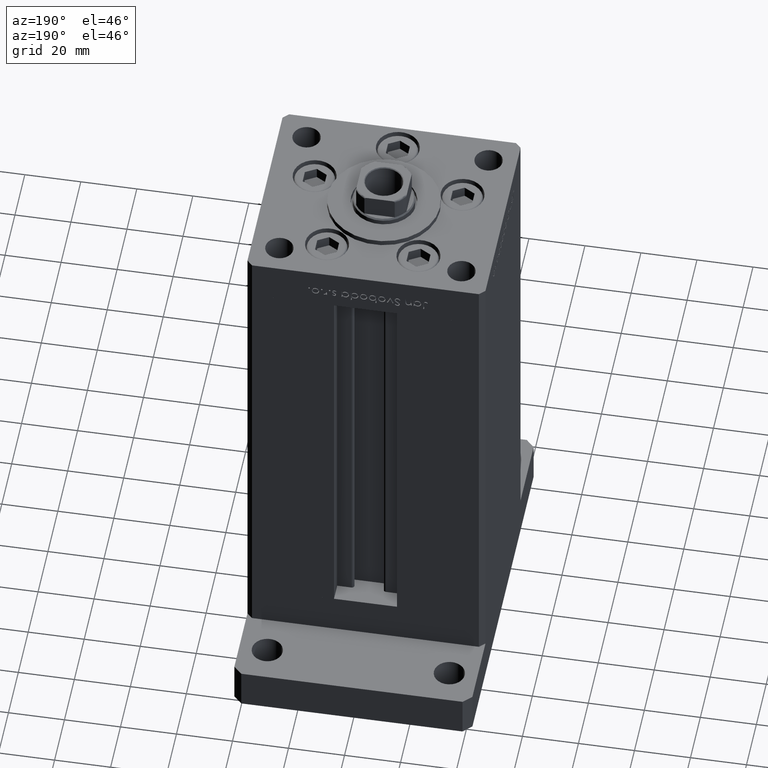
[diagram: clean part render]
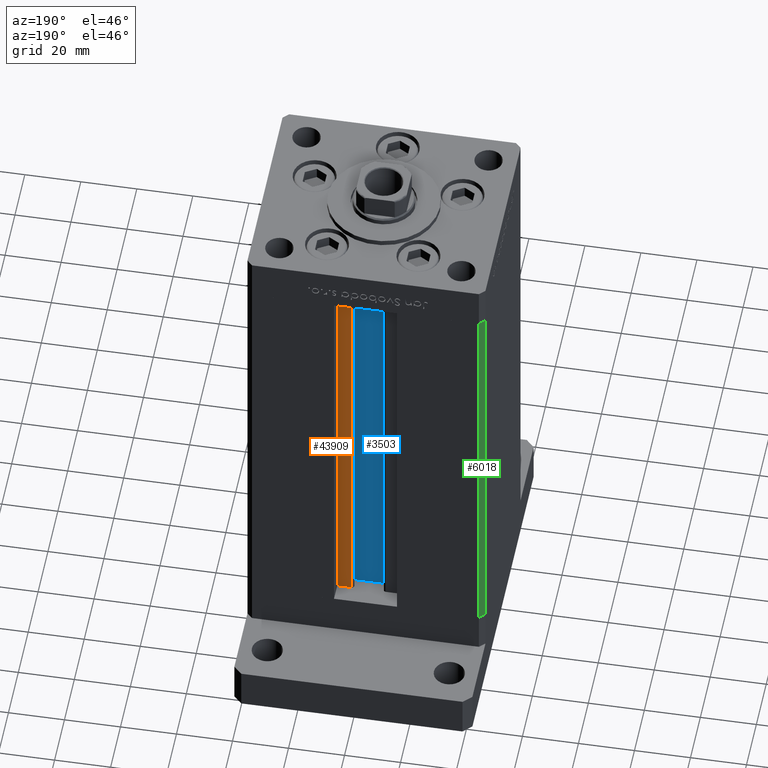
[diagram: same view with three faces highlighted in distinct colors, each labeled with its STEP entity id]
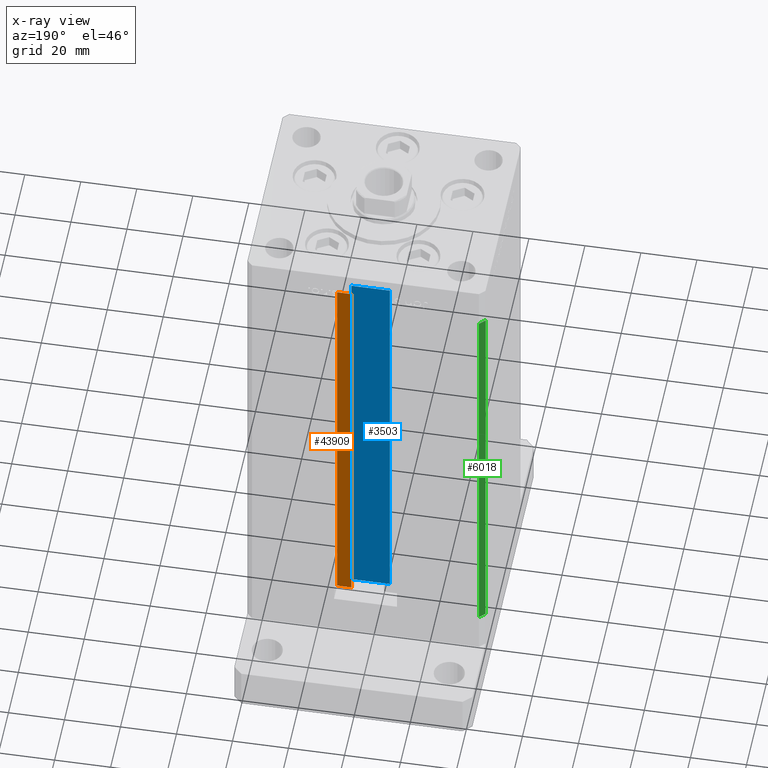
[diagram: x-ray of the same camera — body ghosted, the three highlighted faces saturated]
A machine part, auxiliary view with three faces highlighted in distinct colors.
The next image is the same camera in x-ray (body ghosted, the three faces saturated) — at least one of them is partly hidden behind the body in this view.
Their STEP definitions:

[orange] entity #43909 — the highlighted planar face has unit normal (0, -1, 0).
#491 = DIRECTION ( 'NONE',  ( -0.000000000000000000, -0.000000000000000000, 1.000000000000000000 ) ) ;
#852 = DIRECTION ( 'NONE',  ( -1.000000000000000000, 0.000000000000000000, 0.000000000000000000 ) ) ;
#1392 = CARTESIAN_POINT ( 'NONE',  ( 0.000000000000000000, 30.99999999999999289, 148.5000000000000000 ) ) ;
#2277 = EDGE_CURVE ( 'NONE', #49760, #42768, #46109, .T. ) ;
#3004 = DIRECTION ( 'NONE',  ( 0.000000000000000000, -1.000000000000000000, 0.000000000000000000 ) ) ;
#3571 = CARTESIAN_POINT ( 'NONE',  ( 6.183333333333999704, 30.99999999999999289, 148.5000000000000000 ) ) ;
#4378 = EDGE_CURVE ( 'NONE', #16620, #35608, #23104, .T. ) ;
#6295 = ORIENTED_EDGE ( 'NONE', *, *, #8375, .F. ) ;
#6853 = DIRECTION ( 'NONE',  ( -0.000000000000000000, -0.000000000000000000, 1.000000000000000000 ) ) ;
#7394 = CARTESIAN_POINT ( 'NONE',  ( 11.25000000000000000, 30.99999999999999289, 0.000000000000000000 ) ) ;
#7502 = EDGE_LOOP ( 'NONE', ( #44437, #38277, #10479, #6295 ) ) ;
#8375 = EDGE_CURVE ( 'NONE', #35608, #42768, #13883, .T. ) ;
#10479 = ORIENTED_EDGE ( 'NONE', *, *, #2277, .T. ) ;
#13883 = LINE ( 'NONE', #1392, #32065 ) ;
#15021 = AXIS2_PLACEMENT_3D ( 'NONE', #23599, #3004, #27677 ) ;
#16620 = VERTEX_POINT ( 'NONE', #29246 ) ;
#21462 = DIRECTION ( 'NONE',  ( 1.000000000000000000, 0.000000000000000000, 0.000000000000000000 ) ) ;
#21623 = CARTESIAN_POINT ( 'NONE',  ( 6.183333333333999704, 30.99999999999999289, 0.000000000000000000 ) ) ;
#22090 = CARTESIAN_POINT ( 'NONE',  ( 11.25000000000000000, 30.99999999999999289, 148.5000000000000000 ) ) ;
#23104 = LINE ( 'NONE', #7394, #31947 ) ;
#23599 = CARTESIAN_POINT ( 'NONE',  ( 6.183333333333999704, 30.99999999999999289, 0.000000000000000000 ) ) ;
#27677 = DIRECTION ( 'NONE',  ( 0.000000000000000000, -0.000000000000000000, -1.000000000000000000 ) ) ;
#29246 = CARTESIAN_POINT ( 'NONE',  ( 11.25000000000000000, 30.99999999999999289, 0.000000000000000000 ) ) ;
#29614 = LINE ( 'NONE', #30702, #39868 ) ;
#30702 = CARTESIAN_POINT ( 'NONE',  ( 6.183333333333999704, 30.99999999999999289, 0.000000000000000000 ) ) ;
#31947 = VECTOR ( 'NONE', #6853, 1000.000000000000000 ) ;
#32065 = VECTOR ( 'NONE', #852, 1000.000000000000000 ) ;
#35108 = EDGE_CURVE ( 'NONE', #49760, #16620, #29614, .T. ) ;
#35608 = VERTEX_POINT ( 'NONE', #22090 ) ;
#36271 = VECTOR ( 'NONE', #491, 1000.000000000000000 ) ;
#38277 = ORIENTED_EDGE ( 'NONE', *, *, #35108, .F. ) ;
#39868 = VECTOR ( 'NONE', #21462, 1000.000000000000000 ) ;
#41016 = PLANE ( 'NONE',  #15021 ) ;
#42768 = VERTEX_POINT ( 'NONE', #3571 ) ;
#43909 = ADVANCED_FACE ( 'NONE', ( #44550 ), #41016, .F. ) ;
#44437 = ORIENTED_EDGE ( 'NONE', *, *, #4378, .F. ) ;
#44550 = FACE_OUTER_BOUND ( 'NONE', #7502, .T. ) ;
#46109 = LINE ( 'NONE', #21623, #36271 ) ;
#49760 = VERTEX_POINT ( 'NONE', #51573 ) ;
#51573 = CARTESIAN_POINT ( 'NONE',  ( 6.183333333333999704, 30.99999999999999289, 0.000000000000000000 ) ) ;

[blue] entity #3503 — the highlighted planar face has unit normal (0, -1, 0).
#1879 = ORIENTED_EDGE ( 'NONE', *, *, #34844, .F. ) ;
#2421 = CARTESIAN_POINT ( 'NONE',  ( 6.876153656360465938, 26.99999999999986855, 148.5000000000000000 ) ) ;
#2651 = EDGE_CURVE ( 'NONE', #15592, #41045, #23973, .T. ) ;
#2725 = LINE ( 'NONE', #31203, #6914 ) ;
#3092 = EDGE_LOOP ( 'NONE', ( #31921, #1879, #19616, #10423 ) ) ;
#3245 = CARTESIAN_POINT ( 'NONE',  ( -6.876153656360465938, 26.99999999999986855, 148.5000000000000000 ) ) ;
#3503 = ADVANCED_FACE ( 'NONE', ( #29374 ), #50055, .F. ) ;
#4093 = CARTESIAN_POINT ( 'NONE',  ( 6.876153656360465938, 26.99999999999986855, 0.000000000000000000 ) ) ;
#5175 = DIRECTION ( 'NONE',  ( -1.000000000000000000, 0.000000000000000000, 0.000000000000000000 ) ) ;
#6914 = VECTOR ( 'NONE', #19790, 1000.000000000000000 ) ;
#10423 = ORIENTED_EDGE ( 'NONE', *, *, #31024, .F. ) ;
#12837 = DIRECTION ( 'NONE',  ( 0.000000000000000000, -1.000000000000000000, -0.000000000000000000 ) ) ;
#13681 = DIRECTION ( 'NONE',  ( 1.000000000000000000, -0.000000000000000000, -0.000000000000000000 ) ) ;
#15592 = VERTEX_POINT ( 'NONE', #4093 ) ;
#15869 = CARTESIAN_POINT ( 'NONE',  ( 6.876153656360465938, 26.99999999999986855, 0.000000000000000000 ) ) ;
#16447 = VECTOR ( 'NONE', #5175, 1000.000000000000000 ) ;
#18565 = CARTESIAN_POINT ( 'NONE',  ( 6.876153656360465938, 26.99999999999986855, 0.000000000000000000 ) ) ;
#19616 = ORIENTED_EDGE ( 'NONE', *, *, #31162, .T. ) ;
#19790 = DIRECTION ( 'NONE',  ( -0.000000000000000000, -0.000000000000000000, 1.000000000000000000 ) ) ;
#20734 = CARTESIAN_POINT ( 'NONE',  ( -6.876153656360465938, 26.99999999999986855, 0.000000000000000000 ) ) ;
#23973 = LINE ( 'NONE', #15869, #40630 ) ;
#24529 = LINE ( 'NONE', #25781, #16447 ) ;
#24657 = VERTEX_POINT ( 'NONE', #3245 ) ;
#25781 = CARTESIAN_POINT ( 'NONE',  ( 0.000000000000000000, 26.99999999999986855, 148.5000000000000000 ) ) ;
#28577 = DIRECTION ( 'NONE',  ( 0.000000000000000000, 0.000000000000000000, -1.000000000000000000 ) ) ;
#29374 = FACE_OUTER_BOUND ( 'NONE', #3092, .T. ) ;
#31024 = EDGE_CURVE ( 'NONE', #41045, #24657, #24529, .T. ) ;
#31162 = EDGE_CURVE ( 'NONE', #45134, #24657, #2725, .T. ) ;
#31203 = CARTESIAN_POINT ( 'NONE',  ( -6.876153656360465938, 26.99999999999986855, 0.000000000000000000 ) ) ;
#31921 = ORIENTED_EDGE ( 'NONE', *, *, #2651, .F. ) ;
#34844 = EDGE_CURVE ( 'NONE', #45134, #15592, #46833, .T. ) ;
#39495 = DIRECTION ( 'NONE',  ( -0.000000000000000000, -0.000000000000000000, 1.000000000000000000 ) ) ;
#40630 = VECTOR ( 'NONE', #39495, 1000.000000000000000 ) ;
#41045 = VERTEX_POINT ( 'NONE', #2421 ) ;
#42462 = VECTOR ( 'NONE', #13681, 1000.000000000000000 ) ;
#45134 = VERTEX_POINT ( 'NONE', #20734 ) ;
#45801 = AXIS2_PLACEMENT_3D ( 'NONE', #45988, #12837, #28577 ) ;
#45988 = CARTESIAN_POINT ( 'NONE',  ( 6.876153656360465938, 26.99999999999986855, 0.000000000000000000 ) ) ;
#46833 = LINE ( 'NONE', #18565, #42462 ) ;
#50055 = PLANE ( 'NONE',  #45801 ) ;

[green] entity #6018 — the highlighted planar face has unit normal (0.7071, -0.7071, 0).
#2454 = ORIENTED_EDGE ( 'NONE', *, *, #43824, .T. ) ;
#6018 = ADVANCED_FACE ( 'NONE', ( #11851 ), #27591, .F. ) ;
#6725 = CARTESIAN_POINT ( 'NONE',  ( -42.50000000000000711, 35.50000000000001421, 148.5000000000000000 ) ) ;
#7183 = VECTOR ( 'NONE', #31206, 1000.000000000000114 ) ;
#7339 = CARTESIAN_POINT ( 'NONE',  ( -40.50000000000000000, 37.50000000000000711, 148.5000000000000000 ) ) ;
#8337 = CARTESIAN_POINT ( 'NONE',  ( -40.50000000000000000, 37.50000000000000711, 0.000000000000000000 ) ) ;
#10784 = DIRECTION ( 'NONE',  ( 0.7071067811865500152, 0.7071067811865451302, 0.000000000000000000 ) ) ;
#11851 = FACE_OUTER_BOUND ( 'NONE', #51531, .T. ) ;
#13880 = LINE ( 'NONE', #17128, #15284 ) ;
#14376 = VERTEX_POINT ( 'NONE', #6725 ) ;
#15284 = VECTOR ( 'NONE', #34494, 1000.000000000000114 ) ;
#16272 = LINE ( 'NONE', #7339, #37258 ) ;
#17128 = CARTESIAN_POINT ( 'NONE',  ( -40.50000000000000000, 37.50000000000000711, 148.5000000000000000 ) ) ;
#17924 = LINE ( 'NONE', #50524, #34917 ) ;
#18562 = CARTESIAN_POINT ( 'NONE',  ( -40.50000000000000000, 37.50000000000000711, 148.5000000000000000 ) ) ;
#19522 = VERTEX_POINT ( 'NONE', #8337 ) ;
#19834 = AXIS2_PLACEMENT_3D ( 'NONE', #49087, #52082, #10784 ) ;
#22053 = EDGE_CURVE ( 'NONE', #45172, #14376, #13880, .T. ) ;
#23144 = ORIENTED_EDGE ( 'NONE', *, *, #22053, .F. ) ;
#24402 = DIRECTION ( 'NONE',  ( -0.000000000000000000, -0.000000000000000000, -1.000000000000000000 ) ) ;
#26974 = CARTESIAN_POINT ( 'NONE',  ( -42.50000000000000711, 35.50000000000001421, 0.000000000000000000 ) ) ;
#27032 = ORIENTED_EDGE ( 'NONE', *, *, #31234, .T. ) ;
#27591 = PLANE ( 'NONE',  #19834 ) ;
#31206 = DIRECTION ( 'NONE',  ( -0.7071067811865500152, -0.7071067811865451302, 0.000000000000000000 ) ) ;
#31234 = EDGE_CURVE ( 'NONE', #45172, #19522, #16272, .T. ) ;
#34494 = DIRECTION ( 'NONE',  ( -0.7071067811865500152, -0.7071067811865451302, 0.000000000000000000 ) ) ;
#34917 = VECTOR ( 'NONE', #47269, 1000.000000000000000 ) ;
#37258 = VECTOR ( 'NONE', #24402, 1000.000000000000000 ) ;
#42349 = VERTEX_POINT ( 'NONE', #26974 ) ;
#42873 = EDGE_CURVE ( 'NONE', #14376, #42349, #17924, .T. ) ;
#43454 = ORIENTED_EDGE ( 'NONE', *, *, #42873, .F. ) ;
#43748 = CARTESIAN_POINT ( 'NONE',  ( -40.50000000000000000, 37.50000000000000711, 0.000000000000000000 ) ) ;
#43824 = EDGE_CURVE ( 'NONE', #19522, #42349, #51628, .T. ) ;
#45172 = VERTEX_POINT ( 'NONE', #18562 ) ;
#47269 = DIRECTION ( 'NONE',  ( -0.000000000000000000, -0.000000000000000000, -1.000000000000000000 ) ) ;
#49087 = CARTESIAN_POINT ( 'NONE',  ( -40.50000000000000000, 37.50000000000000711, 148.5000000000000000 ) ) ;
#50524 = CARTESIAN_POINT ( 'NONE',  ( -42.50000000000000711, 35.50000000000001421, 148.5000000000000000 ) ) ;
#51531 = EDGE_LOOP ( 'NONE', ( #2454, #43454, #23144, #27032 ) ) ;
#51628 = LINE ( 'NONE', #43748, #7183 ) ;
#52082 = DIRECTION ( 'NONE',  ( 0.7071067811865451302, -0.7071067811865500152, 0.000000000000000000 ) ) ;